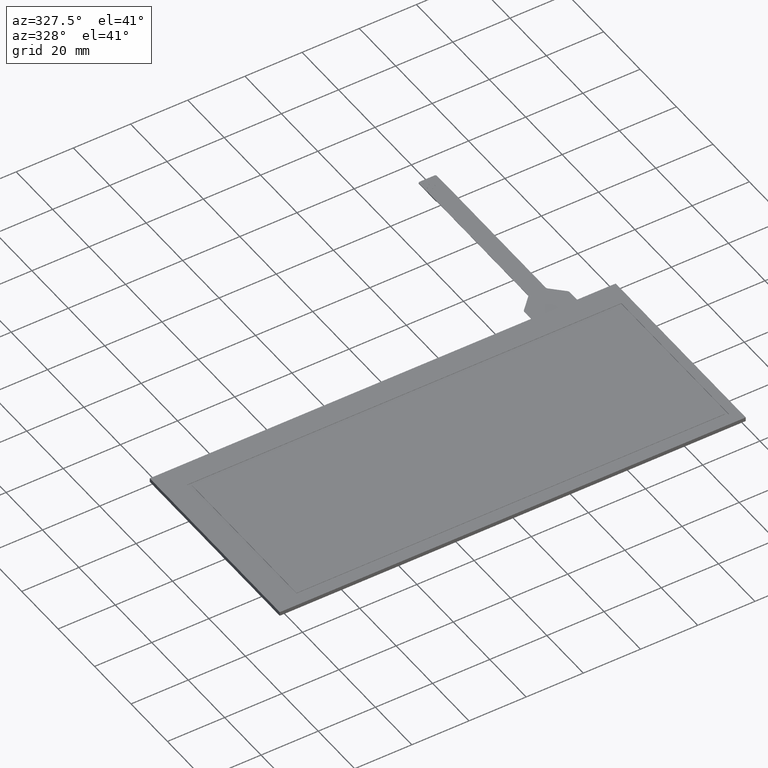
[diagram: clean part render]
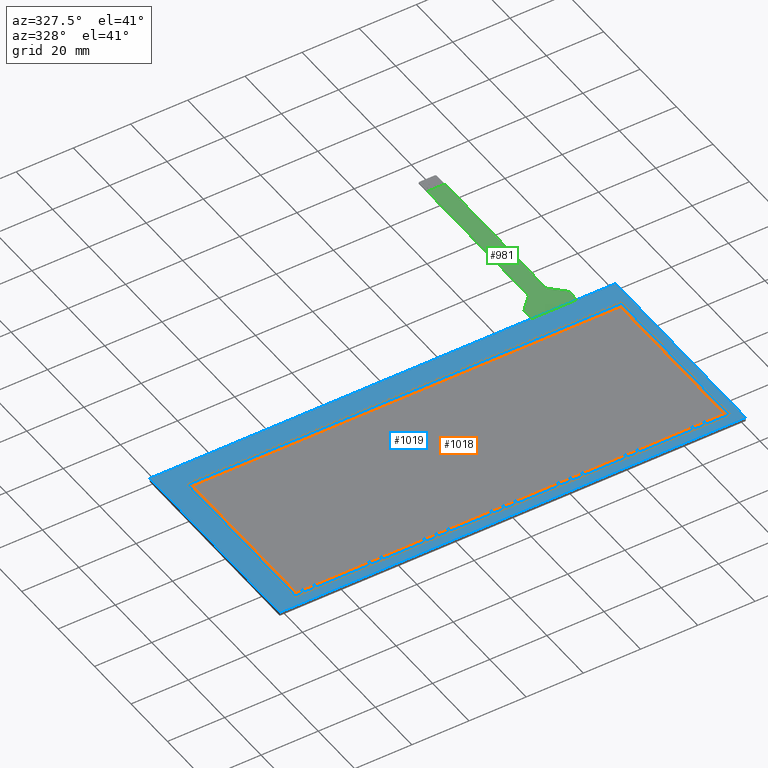
[diagram: same view with three faces highlighted in distinct colors, each labeled with its STEP entity id]
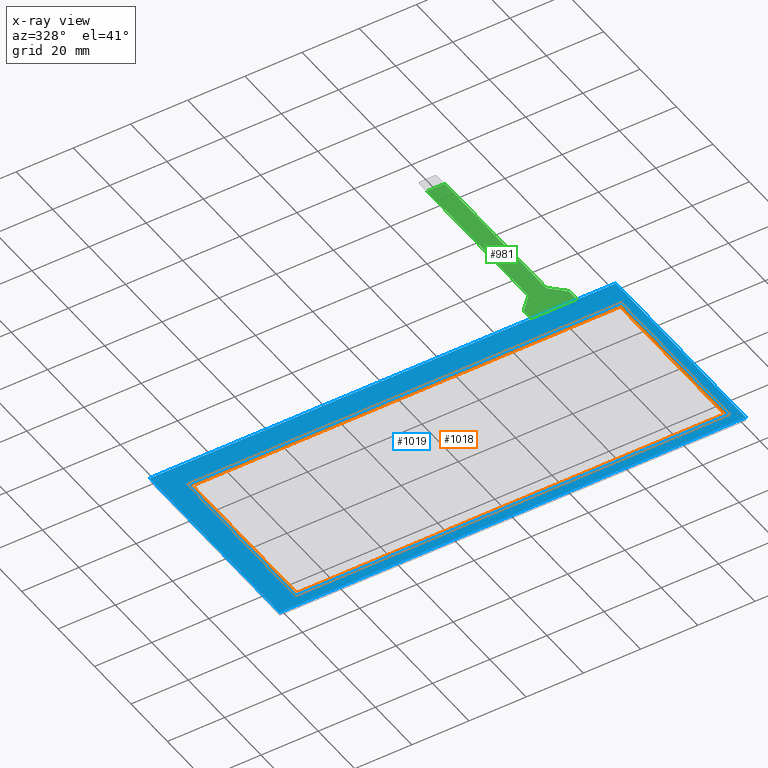
[diagram: x-ray of the same camera — body ghosted, the three highlighted faces saturated]
A machine part, auxiliary view with three faces highlighted in distinct colors.
The next image is the same camera in x-ray (body ghosted, the three faces saturated) — at least one of them is partly hidden behind the body in this view.
Their STEP definitions:

[orange] entity #1018 — the highlighted planar face has unit normal (0, 0, -1).
#46=FACE_BOUND('',#189,.T.);
#86=PLANE('',#1101);
#137=FACE_OUTER_BOUND('',#188,.T.);
#188=EDGE_LOOP('',(#925,#926,#927,#928));
#189=EDGE_LOOP('',(#929,#930,#931,#932));
#291=LINE('',#1576,#417);
#295=LINE('',#1583,#421);
#298=LINE('',#1589,#424);
#300=LINE('',#1592,#426);
#303=LINE('',#1600,#429);
#307=LINE('',#1607,#433);
#310=LINE('',#1613,#436);
#312=LINE('',#1616,#438);
#417=VECTOR('',#1299,10.);
#421=VECTOR('',#1305,10.);
#424=VECTOR('',#1310,10.);
#426=VECTOR('',#1314,10.);
#429=VECTOR('',#1319,10.);
#433=VECTOR('',#1325,10.);
#436=VECTOR('',#1330,10.);
#438=VECTOR('',#1334,10.);
#533=VERTEX_POINT('',#1573);
#534=VERTEX_POINT('',#1575);
#536=VERTEX_POINT('',#1581);
#538=VERTEX_POINT('',#1587);
#541=VERTEX_POINT('',#1597);
#542=VERTEX_POINT('',#1599);
#544=VERTEX_POINT('',#1605);
#546=VERTEX_POINT('',#1611);
#659=EDGE_CURVE('',#533,#534,#291,.T.);
#663=EDGE_CURVE('',#536,#533,#295,.T.);
#666=EDGE_CURVE('',#538,#536,#298,.T.);
#668=EDGE_CURVE('',#534,#538,#300,.T.);
#671=EDGE_CURVE('',#541,#542,#303,.T.);
#675=EDGE_CURVE('',#544,#541,#307,.T.);
#678=EDGE_CURVE('',#546,#544,#310,.T.);
#680=EDGE_CURVE('',#542,#546,#312,.T.);
#925=ORIENTED_EDGE('',*,*,#680,.F.);
#926=ORIENTED_EDGE('',*,*,#671,.F.);
#927=ORIENTED_EDGE('',*,*,#675,.F.);
#928=ORIENTED_EDGE('',*,*,#678,.F.);
#929=ORIENTED_EDGE('',*,*,#668,.F.);
#930=ORIENTED_EDGE('',*,*,#659,.F.);
#931=ORIENTED_EDGE('',*,*,#663,.F.);
#932=ORIENTED_EDGE('',*,*,#666,.F.);
#1018=ADVANCED_FACE('',(#137,#46),#86,.F.);
#1101=AXIS2_PLACEMENT_3D('',#1617,#1335,#1336);
#1299=DIRECTION('',(1.,0.,0.));
#1305=DIRECTION('',(0.,-1.,0.));
#1310=DIRECTION('',(-1.,0.,0.));
#1314=DIRECTION('',(0.,1.,0.));
#1319=DIRECTION('',(5.9809994592601E-16,1.,0.));
#1325=DIRECTION('',(-1.,-5.85097773188488E-17,0.));
#1330=DIRECTION('',(-5.9809994592601E-16,-1.,0.));
#1334=DIRECTION('',(1.,0.,0.));
#1335=DIRECTION('center_axis',(0.,0.,-1.));
#1336=DIRECTION('ref_axis',(-1.,0.,0.));
#1573=CARTESIAN_POINT('',(-74.9,-28.7,-0.1));
#1575=CARTESIAN_POINT('',(74.9,-28.7,-0.1));
#1576=CARTESIAN_POINT('',(74.9,-28.7,-0.1));
#1581=CARTESIAN_POINT('',(-74.9,28.7,-0.1));
#1583=CARTESIAN_POINT('',(-74.9,-28.7,-0.1));
#1587=CARTESIAN_POINT('',(74.9,28.7,-0.1));
#1589=CARTESIAN_POINT('',(-74.9,28.7,-0.1));
#1592=CARTESIAN_POINT('',(74.9,28.7,-0.1));
#1597=CARTESIAN_POINT('',(-75.9,-29.7,-0.1));
#1599=CARTESIAN_POINT('',(-75.9,29.7,-0.1));
#1600=CARTESIAN_POINT('',(-75.9,29.7,-0.1));
#1605=CARTESIAN_POINT('',(75.9,-29.7,-0.1));
#1607=CARTESIAN_POINT('',(-75.9,-29.7,-0.1));
#1611=CARTESIAN_POINT('',(75.9,29.7,-0.1));
#1613=CARTESIAN_POINT('',(75.9,-29.7,-0.1));
#1616=CARTESIAN_POINT('',(75.9,29.7,-0.1));
#1617=CARTESIAN_POINT('Origin',(-8.88178419700125E-15,1.77635683940025E-14,
-0.1));

[blue] entity #1019 — the highlighted planar face has unit normal (0, 0, 1).
#47=FACE_BOUND('',#191,.T.);
#87=PLANE('',#1102);
#138=FACE_OUTER_BOUND('',#190,.T.);
#190=EDGE_LOOP('',(#933,#934,#935,#936));
#191=EDGE_LOOP('',(#937,#938,#939,#940));
#301=LINE('',#1596,#427);
#305=LINE('',#1604,#431);
#308=LINE('',#1610,#434);
#311=LINE('',#1615,#437);
#313=LINE('',#1621,#439);
#314=LINE('',#1623,#440);
#315=LINE('',#1625,#441);
#316=LINE('',#1626,#442);
#427=VECTOR('',#1317,10.);
#431=VECTOR('',#1323,10.);
#434=VECTOR('',#1328,10.);
#437=VECTOR('',#1333,10.);
#439=VECTOR('',#1339,10.);
#440=VECTOR('',#1340,10.);
#441=VECTOR('',#1341,10.);
#442=VECTOR('',#1342,10.);
#539=VERTEX_POINT('',#1594);
#540=VERTEX_POINT('',#1595);
#543=VERTEX_POINT('',#1603);
#545=VERTEX_POINT('',#1609);
#547=VERTEX_POINT('',#1619);
#548=VERTEX_POINT('',#1620);
#549=VERTEX_POINT('',#1622);
#550=VERTEX_POINT('',#1624);
#669=EDGE_CURVE('',#539,#540,#301,.T.);
#673=EDGE_CURVE('',#543,#539,#305,.T.);
#676=EDGE_CURVE('',#545,#543,#308,.T.);
#679=EDGE_CURVE('',#540,#545,#311,.T.);
#681=EDGE_CURVE('',#547,#548,#313,.T.);
#682=EDGE_CURVE('',#548,#549,#314,.T.);
#683=EDGE_CURVE('',#549,#550,#315,.T.);
#684=EDGE_CURVE('',#550,#547,#316,.T.);
#933=ORIENTED_EDGE('',*,*,#681,.T.);
#934=ORIENTED_EDGE('',*,*,#682,.T.);
#935=ORIENTED_EDGE('',*,*,#683,.T.);
#936=ORIENTED_EDGE('',*,*,#684,.T.);
#937=ORIENTED_EDGE('',*,*,#669,.T.);
#938=ORIENTED_EDGE('',*,*,#679,.T.);
#939=ORIENTED_EDGE('',*,*,#676,.T.);
#940=ORIENTED_EDGE('',*,*,#673,.T.);
#1019=ADVANCED_FACE('',(#138,#47),#87,.T.);
#1102=AXIS2_PLACEMENT_3D('',#1618,#1337,#1338);
#1317=DIRECTION('',(5.9809994592601E-16,1.,0.));
#1323=DIRECTION('',(-1.,-5.85097773188488E-17,0.));
#1328=DIRECTION('',(-5.9809994592601E-16,-1.,0.));
#1333=DIRECTION('',(1.,0.,0.));
#1337=DIRECTION('center_axis',(0.,0.,1.));
#1338=DIRECTION('ref_axis',(1.,0.,0.));
#1339=DIRECTION('',(-1.,0.,0.));
#1340=DIRECTION('',(0.,-1.,0.));
#1341=DIRECTION('',(1.,1.08978947202469E-16,0.));
#1342=DIRECTION('',(3.73184209958036E-16,1.,0.));
#1594=CARTESIAN_POINT('',(-75.9,-29.7,0.));
#1595=CARTESIAN_POINT('',(-75.9,29.7,0.));
#1596=CARTESIAN_POINT('',(-75.9,-13.65,0.));
#1603=CARTESIAN_POINT('',(75.9,-29.7,0.));
#1604=CARTESIAN_POINT('',(36.85,-29.7,0.));
#1609=CARTESIAN_POINT('',(75.9,29.7,0.));
#1610=CARTESIAN_POINT('',(75.9,16.05,0.));
#1615=CARTESIAN_POINT('',(-39.05,29.7,0.));
#1618=CARTESIAN_POINT('Origin',(-2.20000000000003,2.40000000000001,0.));
#1619=CARTESIAN_POINT('',(79.3,38.1,0.));
#1620=CARTESIAN_POINT('',(-83.7,38.1,0.));
#1621=CARTESIAN_POINT('',(79.3,38.1,0.));
#1622=CARTESIAN_POINT('',(-83.7,-33.3,0.));
#1623=CARTESIAN_POINT('',(-83.7,38.1,0.));
#1624=CARTESIAN_POINT('',(79.3,-33.3,0.));
#1625=CARTESIAN_POINT('',(-83.7,-33.3,0.));
#1626=CARTESIAN_POINT('',(79.3,-33.3,0.));

[green] entity #981 — the highlighted planar face has unit normal (0, 0, 1).
#52=PLANE('',#1058);
#100=FACE_OUTER_BOUND('',#151,.T.);
#151=EDGE_LOOP('',(#735,#736,#737,#738,#739,#740,#741,#742,#743,#744,#745,
#746));
#226=LINE('',#1434,#352);
#229=LINE('',#1440,#355);
#230=LINE('',#1442,#356);
#231=LINE('',#1444,#357);
#232=LINE('',#1448,#358);
#233=LINE('',#1452,#359);
#234=LINE('',#1454,#360);
#235=LINE('',#1456,#361);
#352=VECTOR('',#1162,10.);
#355=VECTOR('',#1167,10.);
#356=VECTOR('',#1168,10.);
#357=VECTOR('',#1169,10.);
#358=VECTOR('',#1172,10.);
#359=VECTOR('',#1175,10.);
#360=VECTOR('',#1176,10.);
#361=VECTOR('',#1177,10.);
#456=CIRCLE('',#1056,1.);
#457=CIRCLE('',#1059,1.);
#458=CIRCLE('',#1060,1.);
#459=CIRCLE('',#1061,1.);
#491=VERTEX_POINT('',#1427);
#492=VERTEX_POINT('',#1429);
#493=VERTEX_POINT('',#1433);
#495=VERTEX_POINT('',#1439);
#496=VERTEX_POINT('',#1441);
#497=VERTEX_POINT('',#1443);
#498=VERTEX_POINT('',#1445);
#499=VERTEX_POINT('',#1447);
#500=VERTEX_POINT('',#1449);
#501=VERTEX_POINT('',#1451);
#502=VERTEX_POINT('',#1453);
#503=VERTEX_POINT('',#1455);
#586=EDGE_CURVE('',#491,#492,#456,.T.);
#588=EDGE_CURVE('',#493,#492,#226,.T.);
#591=EDGE_CURVE('',#491,#495,#229,.T.);
#592=EDGE_CURVE('',#496,#495,#230,.T.);
#593=EDGE_CURVE('',#496,#497,#231,.T.);
#594=EDGE_CURVE('',#498,#497,#457,.T.);
#595=EDGE_CURVE('',#498,#499,#232,.T.);
#596=EDGE_CURVE('',#500,#499,#458,.T.);
#597=EDGE_CURVE('',#500,#501,#233,.T.);
#598=EDGE_CURVE('',#501,#502,#234,.T.);
#599=EDGE_CURVE('',#502,#503,#235,.T.);
#600=EDGE_CURVE('',#493,#503,#459,.T.);
#735=ORIENTED_EDGE('',*,*,#586,.F.);
#736=ORIENTED_EDGE('',*,*,#591,.T.);
#737=ORIENTED_EDGE('',*,*,#592,.F.);
#738=ORIENTED_EDGE('',*,*,#593,.T.);
#739=ORIENTED_EDGE('',*,*,#594,.F.);
#740=ORIENTED_EDGE('',*,*,#595,.T.);
#741=ORIENTED_EDGE('',*,*,#596,.F.);
#742=ORIENTED_EDGE('',*,*,#597,.T.);
#743=ORIENTED_EDGE('',*,*,#598,.T.);
#744=ORIENTED_EDGE('',*,*,#599,.T.);
#745=ORIENTED_EDGE('',*,*,#600,.F.);
#746=ORIENTED_EDGE('',*,*,#588,.T.);
#981=ADVANCED_FACE('',(#100),#52,.T.);
#1056=AXIS2_PLACEMENT_3D('',#1430,#1157,#1158);
#1058=AXIS2_PLACEMENT_3D('',#1438,#1165,#1166);
#1059=AXIS2_PLACEMENT_3D('',#1446,#1170,#1171);
#1060=AXIS2_PLACEMENT_3D('',#1450,#1173,#1174);
#1061=AXIS2_PLACEMENT_3D('',#1457,#1178,#1179);
#1157=DIRECTION('center_axis',(0.,0.,-1.));
#1158=DIRECTION('ref_axis',(-0.926470977387794,0.376366215351626,0.));
#1162=DIRECTION('',(-0.697384750785127,-0.716696943883791,0.));
#1165=DIRECTION('center_axis',(0.,0.,1.));
#1166=DIRECTION('ref_axis',(1.,0.,0.));
#1167=DIRECTION('',(0.,-1.,0.));
#1168=DIRECTION('',(-1.,0.,0.));
#1169=DIRECTION('',(0.,1.,0.));
#1170=DIRECTION('center_axis',(0.,0.,-1.));
#1171=DIRECTION('ref_axis',(0.921245013768086,0.388982807598792,0.));
#1172=DIRECTION('',(-0.716696943883792,0.697384750785126,0.));
#1173=DIRECTION('center_axis',(0.,0.,1.));
#1174=DIRECTION('ref_axis',(-0.921245013768086,-0.388982807598792,0.));
#1175=DIRECTION('',(0.,1.,0.));
#1176=DIRECTION('',(-1.,2.8421709430404E-15,0.));
#1177=DIRECTION('',(2.93128191320173E-16,-1.,0.));
#1178=DIRECTION('center_axis',(0.,0.,1.));
#1179=DIRECTION('ref_axis',(0.926470977387797,-0.376366215351618,0.));
#1427=CARTESIAN_POINT('',(49.9,42.0837636207312,-0.2));
#1429=CARTESIAN_POINT('',(50.1833030561162,42.7811483715164,-0.2));
#1430=CARTESIAN_POINT('Origin',(50.9,42.0837636207312,-0.2));
#1433=CARTESIAN_POINT('',(54.4916969438838,47.2088516284837,-0.2));
#1434=CARTESIAN_POINT('',(54.775,47.5,-0.2));
#1438=CARTESIAN_POINT('Origin',(57.9,73.1,-0.2));
#1439=CARTESIAN_POINT('',(49.9,38.1,-0.2));
#1440=CARTESIAN_POINT('',(49.9,42.49,-0.2));
#1441=CARTESIAN_POINT('',(65.9,38.1,-0.2));
#1442=CARTESIAN_POINT('',(-12.9,38.1,-0.2));
#1443=CARTESIAN_POINT('',(65.9,42.3341262776576,-0.2));
#1444=CARTESIAN_POINT('',(65.9,38.1,-0.2));
#1445=CARTESIAN_POINT('',(65.5973847507851,43.0508232215414,-0.2));
#1446=CARTESIAN_POINT('Origin',(64.9,42.3341262776576,-0.2));
#1447=CARTESIAN_POINT('',(61.3276152492149,47.2055390539077,-0.2));
#1448=CARTESIAN_POINT('',(65.9,42.7563622754491,-0.2));
#1449=CARTESIAN_POINT('',(61.025,47.9222359977915,-0.2));
#1450=CARTESIAN_POINT('Origin',(62.025,47.9222359977915,-0.2));
#1451=CARTESIAN_POINT('',(61.025,103.1,-0.2));
#1452=CARTESIAN_POINT('',(61.025,47.5,-0.2));
#1453=CARTESIAN_POINT('',(54.775,103.1,-0.2));
#1454=CARTESIAN_POINT('',(59.4625,103.1,-0.2));
#1455=CARTESIAN_POINT('',(54.775,47.9062363792688,-0.2));
#1456=CARTESIAN_POINT('',(54.775,108.1,-0.2));
#1457=CARTESIAN_POINT('Origin',(53.775,47.9062363792688,-0.2));